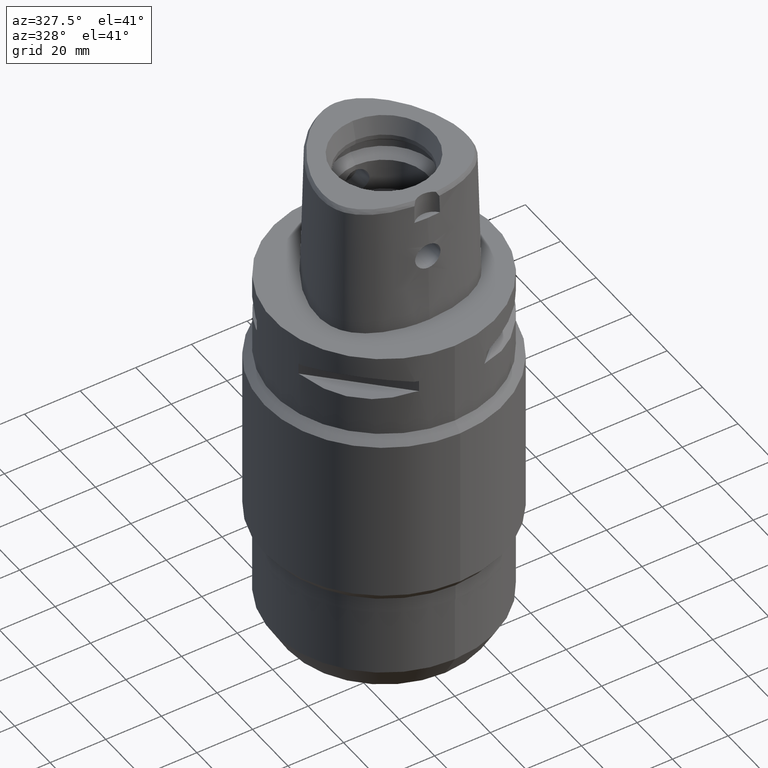
[diagram: clean part render]
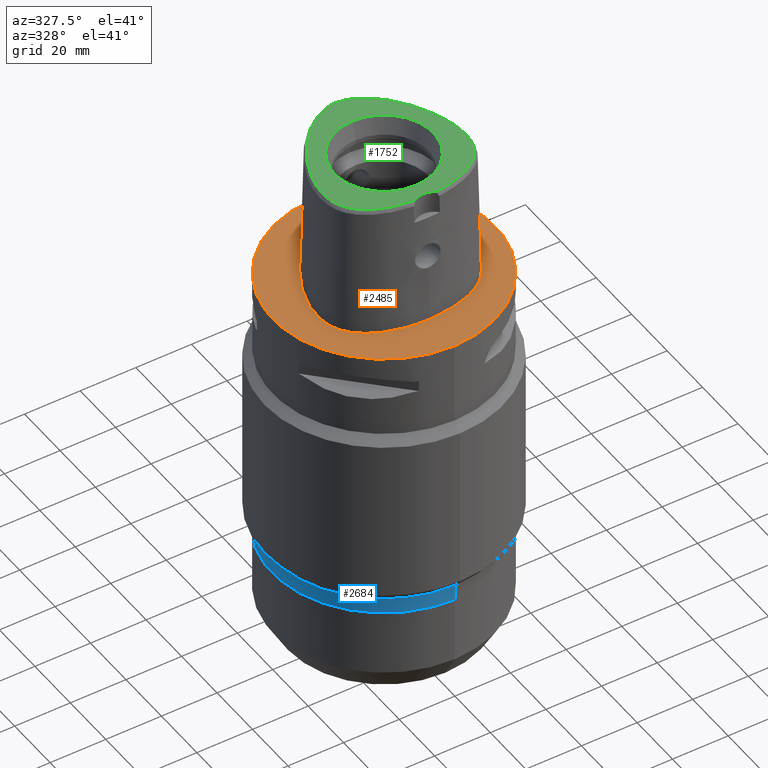
[diagram: same view with three faces highlighted in distinct colors, each labeled with its STEP entity id]
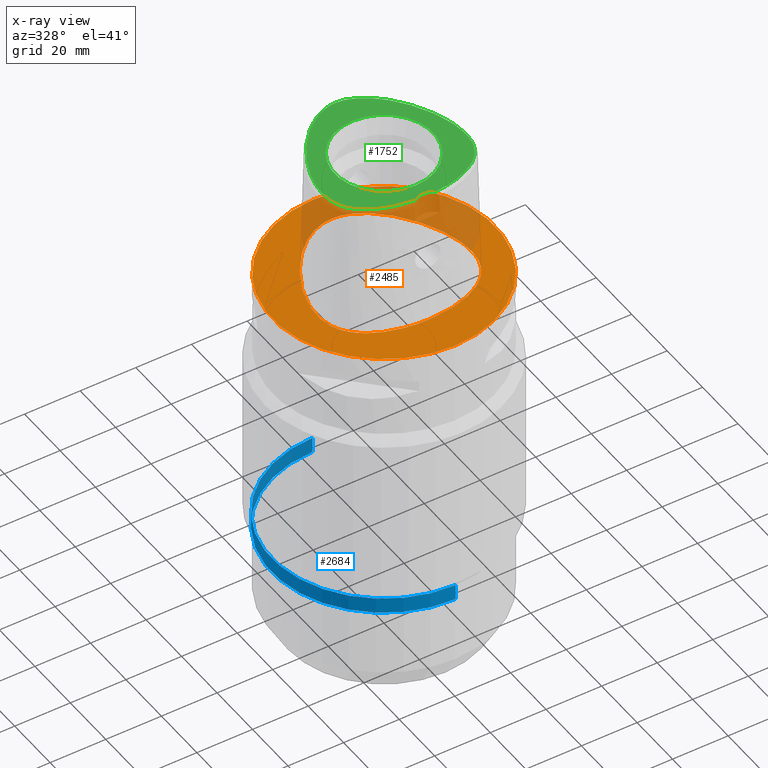
[diagram: x-ray of the same camera — body ghosted, the three highlighted faces saturated]
A machine part, auxiliary view with three faces highlighted in distinct colors.
The next image is the same camera in x-ray (body ghosted, the three faces saturated) — at least one of them is partly hidden behind the body in this view.
Their STEP definitions:

[orange] entity #2485 — the highlighted planar face has unit normal (0, 0, -1).
#284=CARTESIAN_POINT('',(0.E0,1.308780034249E-14,0.E0));
#285=DIRECTION('',(0.E0,0.E0,-1.E0));
#286=DIRECTION('',(0.E0,-1.E0,0.E0));
#287=AXIS2_PLACEMENT_3D('',#284,#285,#286);
#292=CARTESIAN_POINT('',(0.E0,1.308780034249E-14,0.E0));
#293=DIRECTION('',(0.E0,0.E0,-1.E0));
#294=DIRECTION('',(0.E0,1.E0,0.E0));
#295=AXIS2_PLACEMENT_3D('',#292,#293,#294);
#300=CARTESIAN_POINT('',(-1.259880274379E-11,-2.5575E1,9.040916163864E-14));
#301=CARTESIAN_POINT('',(1.261207447350E0,-2.5575E1,9.040916163864E-14));
#302=CARTESIAN_POINT('',(3.718179933075E0,-2.547857452489E1,
-4.195903793974E-14));
#303=CARTESIAN_POINT('',(7.240705837510E0,-2.507030802752E1,
1.124289033114E-14));
#304=CARTESIAN_POINT('',(1.050024558177E1,-2.443006583016E1,0.E0));
#305=CARTESIAN_POINT('',(1.341835861359E1,-2.360765640070E1,0.E0));
#306=CARTESIAN_POINT('',(1.597034105915E1,-2.265297043850E1,0.E0));
#307=CARTESIAN_POINT('',(1.817184763725E1,-2.160585265022E1,0.E0));
#308=CARTESIAN_POINT('',(2.005906641113E1,-2.049120242452E1,0.E0));
#309=CARTESIAN_POINT('',(2.165550347096E1,-1.933646032974E1,0.E0));
#310=CARTESIAN_POINT('',(2.301006974151E1,-1.814303779308E1,0.E0));
#311=CARTESIAN_POINT('',(2.414386041108E1,-1.692409573042E1,0.E0));
#312=CARTESIAN_POINT('',(2.509815608432E1,-1.566218093477E1,0.E0));
#313=CARTESIAN_POINT('',(2.589373479761E1,-1.433637151526E1,0.E0));
#314=CARTESIAN_POINT('',(2.654439279898E1,-1.292819265653E1,0.E0));
#315=CARTESIAN_POINT('',(2.707227082252E1,-1.138988530395E1,0.E0));
#316=CARTESIAN_POINT('',(2.747136657536E1,-9.693473818852E0,0.E0));
#317=CARTESIAN_POINT('',(2.772786675753E1,-7.791573008351E0,0.E0));
#318=CARTESIAN_POINT('',(2.781205187001E1,-5.676398996866E0,0.E0));
#319=CARTESIAN_POINT('',(2.769229699443E1,-3.320307071040E0,0.E0));
#320=CARTESIAN_POINT('',(2.732912117602E1,-7.093632411035E-1,0.E0));
#321=CARTESIAN_POINT('',(2.668151856095E1,2.153217594110E0,0.E0));
#322=CARTESIAN_POINT('',(2.571344251087E1,5.239638069469E0,0.E0));
#323=CARTESIAN_POINT('',(2.440280266561E1,8.489998082643E0,0.E0));
#324=CARTESIAN_POINT('',(2.276338936013E1,1.178954261108E1,0.E0));
#325=CARTESIAN_POINT('',(2.084918218612E1,1.499790412370E1,0.E0));
#326=CARTESIAN_POINT('',(1.875653894445E1,1.796004655102E1,0.E0));
#327=CARTESIAN_POINT('',(1.657816998336E1,2.058190727795E1,0.E0));
#328=CARTESIAN_POINT('',(1.439588030136E1,2.281748529486E1,0.E0));
#329=CARTESIAN_POINT('',(1.226799440244E1,2.466532793176E1,0.E0));
#330=CARTESIAN_POINT('',(1.022602620212E1,2.615357128313E1,0.E0));
#331=CARTESIAN_POINT('',(8.287455705675E0,2.731909373846E1,0.E0));
#332=CARTESIAN_POINT('',(6.454164190980E0,2.820374363513E1,0.E0));
#333=CARTESIAN_POINT('',(4.717863503287E0,2.884639976424E1,0.E0));
#334=CARTESIAN_POINT('',(3.069270244740E0,2.927787737342E1,1.043292361060E-14));
#335=CARTESIAN_POINT('',(1.501127257022E0,2.952296008063E1,
-3.893620098625E-14));
#336=CARTESIAN_POINT('',(4.932289073076E-1,2.957499999999E1,
8.389585322751E-14));
#337=CARTESIAN_POINT('',(3.246797305882E-11,2.957499999999E1,
8.389585322751E-14));
#342=CARTESIAN_POINT('',(3.246797305882E-11,2.957499999999E1,
8.389585322751E-14));
#343=CARTESIAN_POINT('',(-4.935218364234E-1,2.9575E1,8.389585322751E-14));
#344=CARTESIAN_POINT('',(-1.501770038441E0,2.952291270597E1,
-3.893620098625E-14));
#345=CARTESIAN_POINT('',(-3.070150224443E0,2.927766824744E1,
1.043292361060E-14));
#346=CARTESIAN_POINT('',(-4.717429658208E0,2.884649958026E1,0.E0));
#347=CARTESIAN_POINT('',(-6.453525135845E0,2.820402776714E1,0.E0));
#348=CARTESIAN_POINT('',(-8.287124270453E0,2.731927850090E1,0.E0));
#349=CARTESIAN_POINT('',(-1.022579449307E1,2.615374195714E1,0.E0));
#350=CARTESIAN_POINT('',(-1.226854351079E1,2.466493324310E1,0.E0));
#351=CARTESIAN_POINT('',(-1.439693973065E1,2.281647385840E1,0.E0));
#352=CARTESIAN_POINT('',(-1.657874315625E1,2.058126978314E1,0.E0));
#353=CARTESIAN_POINT('',(-1.875714551412E1,1.795919839573E1,0.E0));
#354=CARTESIAN_POINT('',(-2.084819142304E1,1.499930808962E1,0.E0));
#355=CARTESIAN_POINT('',(-2.276147181715E1,1.179289609205E1,0.E0));
#356=CARTESIAN_POINT('',(-2.439958324787E1,8.496935296554E0,0.E0));
#357=CARTESIAN_POINT('',(-2.570992862620E1,5.249179460505E0,0.E0));
#358=CARTESIAN_POINT('',(-2.667764481780E1,2.166911409041E0,0.E0));
#359=CARTESIAN_POINT('',(-2.732561094534E1,-6.908226314120E-1,0.E0));
#360=CARTESIAN_POINT('',(-2.769029224992E1,-3.300452857703E0,0.E0));
#361=CARTESIAN_POINT('',(-2.781191537807E1,-5.654802974526E0,0.E0));
#362=CARTESIAN_POINT('',(-2.772936440119E1,-7.771622083391E0,0.E0));
#363=CARTESIAN_POINT('',(-2.747625046266E1,-9.667377166128E0,0.E0));
#364=CARTESIAN_POINT('',(-2.707598857268E1,-1.137801247622E1,0.E0));
#365=CARTESIAN_POINT('',(-2.654784524431E1,-1.292062999253E1,0.E0));
#366=CARTESIAN_POINT('',(-2.588955697541E1,-1.434512067514E1,0.E0));
#367=CARTESIAN_POINT('',(-2.509445679839E1,-1.566681785519E1,0.E0));
#368=CARTESIAN_POINT('',(-2.414752725193E1,-1.691941911810E1,0.E0));
#369=CARTESIAN_POINT('',(-2.301748292128E1,-1.813526212870E1,0.E0));
#370=CARTESIAN_POINT('',(-2.167590100650E1,-1.932011302917E1,0.E0));
#371=CARTESIAN_POINT('',(-2.007354854073E1,-2.048194732013E1,0.E0));
#372=CARTESIAN_POINT('',(-1.819100690708E1,-2.159563948573E1,0.E0));
#373=CARTESIAN_POINT('',(-1.598629775416E1,-2.264642027838E1,0.E0));
#374=CARTESIAN_POINT('',(-1.343347509152E1,-2.360271900730E1,0.E0));
#375=CARTESIAN_POINT('',(-1.051573350269E1,-2.442648025835E1,0.E0));
#376=CARTESIAN_POINT('',(-7.249525221807E0,-2.506923339403E1,
1.124289033114E-14));
#377=CARTESIAN_POINT('',(-3.716585937515E0,-2.547885029765E1,
-4.195903793974E-14));
#378=CARTESIAN_POINT('',(-1.259999902723E0,-2.5575E1,9.040916163864E-14));
#379=CARTESIAN_POINT('',(-1.259880274379E-11,-2.5575E1,9.040916163864E-14));
#1574=VERTEX_POINT('',#342);
#1575=VERTEX_POINT('',#379);
#1580=CARTESIAN_POINT('',(0.E0,-4.E1,0.E0));
#1581=CARTESIAN_POINT('',(0.E0,4.E1,0.E0));
#1582=VERTEX_POINT('',#1580);
#1583=VERTEX_POINT('',#1581);
#2469=CARTESIAN_POINT('',(0.E0,1.224646799147E-14,0.E0));
#2470=DIRECTION('',(0.E0,0.E0,-1.E0));
#2471=DIRECTION('',(0.E0,-1.E0,0.E0));
#2472=AXIS2_PLACEMENT_3D('',#2469,#2470,#2471);
#2473=PLANE('',#2472);
#2475=ORIENTED_EDGE('',*,*,#2474,.T.);
#2477=ORIENTED_EDGE('',*,*,#2476,.T.);
#2478=EDGE_LOOP('',(#2475,#2477));
#2479=FACE_OUTER_BOUND('',#2478,.F.);
#2481=ORIENTED_EDGE('',*,*,#2480,.T.);
#2482=ORIENTED_EDGE('',*,*,#2452,.T.);
#2483=EDGE_LOOP('',(#2481,#2482));
#2484=FACE_BOUND('',#2483,.F.);
#288=CIRCLE('',#287,4.E1);
#296=CIRCLE('',#295,4.E1);
#338=B_SPLINE_CURVE_WITH_KNOTS('',3,(#300,#301,#302,#303,#304,#305,#306,#307,
#308,#309,#310,#311,#312,#313,#314,#315,#316,#317,#318,#319,#320,#321,#322,#323,
#324,#325,#326,#327,#328,#329,#330,#331,#332,#333,#334,#335,#336,#337),
.UNSPECIFIED.,.F.,.F.,(4,1,1,1,1,1,1,1,1,1,1,1,1,1,1,1,1,1,1,1,1,1,1,1,1,1,1,1,
1,1,1,1,1,1,1,4),(0.E0,2.857142857143E-2,5.714285714286E-2,8.571428571429E-2,
1.142857142857E-1,1.428571428571E-1,1.714285714286E-1,2.E-1,2.285714285714E-1,
2.571428571429E-1,2.857142857143E-1,3.142857142857E-1,3.428571428571E-1,
3.714285714286E-1,4.E-1,4.285714285714E-1,4.571428571429E-1,4.857142857143E-1,
5.142857142857E-1,5.428571428571E-1,5.714285714286E-1,6.E-1,6.285714285714E-1,
6.571428571429E-1,6.857142857143E-1,7.142857142857E-1,7.428571428571E-1,
7.714285714286E-1,8.E-1,8.285714285714E-1,8.571428571429E-1,8.857142857143E-1,
9.142857142857E-1,9.428571428571E-1,9.714285714286E-1,1.E0),.UNSPECIFIED.);
#380=B_SPLINE_CURVE_WITH_KNOTS('',3,(#342,#343,#344,#345,#346,#347,#348,#349,
#350,#351,#352,#353,#354,#355,#356,#357,#358,#359,#360,#361,#362,#363,#364,#365,
#366,#367,#368,#369,#370,#371,#372,#373,#374,#375,#376,#377,#378,#379),
.UNSPECIFIED.,.F.,.F.,(4,1,1,1,1,1,1,1,1,1,1,1,1,1,1,1,1,1,1,1,1,1,1,1,1,1,1,1,
1,1,1,1,1,1,1,4),(0.E0,2.857142857143E-2,5.714285714286E-2,8.571428571429E-2,
1.142857142857E-1,1.428571428571E-1,1.714285714286E-1,2.E-1,2.285714285714E-1,
2.571428571429E-1,2.857142857143E-1,3.142857142857E-1,3.428571428571E-1,
3.714285714286E-1,4.E-1,4.285714285714E-1,4.571428571429E-1,4.857142857143E-1,
5.142857142857E-1,5.428571428571E-1,5.714285714286E-1,6.E-1,6.285714285714E-1,
6.571428571429E-1,6.857142857143E-1,7.142857142857E-1,7.428571428571E-1,
7.714285714286E-1,8.E-1,8.285714285714E-1,8.571428571429E-1,8.857142857143E-1,
9.142857142857E-1,9.428571428571E-1,9.714285714286E-1,1.E0),.UNSPECIFIED.);
#2452=EDGE_CURVE('',#1574,#1575,#380,.T.);
#2474=EDGE_CURVE('',#1582,#1583,#288,.T.);
#2476=EDGE_CURVE('',#1583,#1582,#296,.T.);
#2480=EDGE_CURVE('',#1575,#1574,#338,.T.);
#2485=ADVANCED_FACE('',(#2479,#2484),#2473,.F.);

[blue] entity #2684 — the highlighted cylindrical surface (partial cylindrical patch) has radius 40.35 mm, axis along (0, 0, -1).
#640=CARTESIAN_POINT('',(0.E0,0.E0,-9.591666877729E1));
#641=DIRECTION('',(0.E0,0.E0,-1.E0));
#642=DIRECTION('',(0.E0,-1.E0,0.E0));
#643=AXIS2_PLACEMENT_3D('',#640,#641,#642);
#648=DIRECTION('',(0.E0,2.975529042460E-13,-1.E0));
#649=VECTOR('',#648,5.683331222709E0);
#650=CARTESIAN_POINT('',(0.E0,-4.035E1,-9.591666877729E1));
#651=LINE('',#650,#649);
#655=DIRECTION('',(0.E0,-2.975529042460E-13,-1.E0));
#656=VECTOR('',#655,5.683331222709E0);
#657=CARTESIAN_POINT('',(0.E0,4.035E1,-9.591666877729E1));
#658=LINE('',#657,#656);
#670=CARTESIAN_POINT('',(0.E0,1.308780034249E-14,-1.016E2));
#671=DIRECTION('',(0.E0,0.E0,1.E0));
#672=DIRECTION('',(0.E0,1.E0,0.E0));
#673=AXIS2_PLACEMENT_3D('',#670,#671,#672);
#1648=CARTESIAN_POINT('',(0.E0,4.035E1,-9.591666877729E1));
#1649=VERTEX_POINT('',#1648);
#1650=CARTESIAN_POINT('',(0.E0,-4.035E1,-9.591666877729E1));
#1651=VERTEX_POINT('',#1650);
#1652=CARTESIAN_POINT('',(0.E0,4.035E1,-1.016E2));
#1653=VERTEX_POINT('',#1652);
#1654=CARTESIAN_POINT('',(0.E0,-4.035E1,-1.016E2));
#1655=VERTEX_POINT('',#1654);
#2670=CARTESIAN_POINT('',(0.E0,1.308780034249E-14,6.87E0));
#2671=DIRECTION('',(0.E0,0.E0,-1.E0));
#2672=DIRECTION('',(0.E0,-1.E0,0.E0));
#2673=AXIS2_PLACEMENT_3D('',#2670,#2671,#2672);
#2674=CYLINDRICAL_SURFACE('',#2673,4.035E1);
#2676=ORIENTED_EDGE('',*,*,#2675,.F.);
#2677=ORIENTED_EDGE('',*,*,#2665,.F.);
#2679=ORIENTED_EDGE('',*,*,#2678,.T.);
#2681=ORIENTED_EDGE('',*,*,#2680,.F.);
#2682=EDGE_LOOP('',(#2676,#2677,#2679,#2681));
#2683=FACE_OUTER_BOUND('',#2682,.F.);
#644=CIRCLE('',#643,4.035E1);
#674=CIRCLE('',#673,4.035E1);
#2665=EDGE_CURVE('',#1651,#1649,#644,.T.);
#2675=EDGE_CURVE('',#1649,#1653,#658,.T.);
#2678=EDGE_CURVE('',#1651,#1655,#651,.T.);
#2680=EDGE_CURVE('',#1653,#1655,#674,.T.);
#2684=ADVANCED_FACE('',(#2683),#2674,.T.);

[green] entity #1752 — the highlighted planar face has unit normal (0, 0, 1).
#17=CARTESIAN_POINT('',(0.E0,-2.82E1,4.8E1));
#18=DIRECTION('',(0.E0,0.E0,1.E0));
#19=DIRECTION('',(6.087555377261E-1,7.933578607967E-1,0.E0));
#20=AXIS2_PLACEMENT_3D('',#17,#18,#19);
#26=CARTESIAN_POINT('',(-3.652522997767E0,-2.343985098347E1,4.8E1));
#27=CARTESIAN_POINT('',(-4.790738551227E0,-2.334983108673E1,4.8E1));
#28=CARTESIAN_POINT('',(-6.923036490752E0,-2.309458465777E1,4.8E1));
#29=CARTESIAN_POINT('',(-9.664129206474E0,-2.256649029775E1,4.8E1));
#30=CARTESIAN_POINT('',(-1.204649551352E1,-2.193673741028E1,4.8E1));
#31=CARTESIAN_POINT('',(-1.415844021858E1,-2.122106854864E1,4.8E1));
#32=CARTESIAN_POINT('',(-1.606413163527E1,-2.041995835463E1,4.8E1));
#33=CARTESIAN_POINT('',(-1.779710332804E1,-1.953165082833E1,4.8E1));
#34=CARTESIAN_POINT('',(-1.940203712478E1,-1.852928113467E1,4.8E1));
#35=CARTESIAN_POINT('',(-2.080389181587E1,-1.745550500891E1,4.8E1));
#36=CARTESIAN_POINT('',(-2.196107949612E1,-1.637022175497E1,4.8E1));
#37=CARTESIAN_POINT('',(-2.291473616042E1,-1.527329137963E1,4.8E1));
#38=CARTESIAN_POINT('',(-2.369323134776E1,-1.416230142199E1,4.8E1));
#39=CARTESIAN_POINT('',(-2.433082469049E1,-1.300573097428E1,4.8E1));
#40=CARTESIAN_POINT('',(-2.486788021900E1,-1.172841596637E1,4.8E1));
#41=CARTESIAN_POINT('',(-2.530245545293E1,-1.029396107028E1,4.8E1));
#42=CARTESIAN_POINT('',(-2.561928308626E1,-8.677621983350E0,4.8E1));
#43=CARTESIAN_POINT('',(-2.579183038944E1,-6.850338471059E0,4.8E1));
#44=CARTESIAN_POINT('',(-2.579602750248E1,-4.948756673782E0,4.8E1));
#45=CARTESIAN_POINT('',(-2.564228678539E1,-2.977739114789E0,4.8E1));
#46=CARTESIAN_POINT('',(-2.532145828898E1,-8.804411957880E-1,4.8E1));
#47=CARTESIAN_POINT('',(-2.481601241964E1,1.362913556681E0,4.8E1));
#48=CARTESIAN_POINT('',(-2.408156198802E1,3.829034566399E0,4.8E1));
#49=CARTESIAN_POINT('',(-2.304378900909E1,6.601135535334E0,4.8E1));
#50=CARTESIAN_POINT('',(-2.160159166665E1,9.722035972291E0,4.8E1));
#51=CARTESIAN_POINT('',(-1.982970702775E1,1.288242269149E1,4.8E1));
#52=CARTESIAN_POINT('',(-1.784864378717E1,1.584032414211E1,4.8E1));
#53=CARTESIAN_POINT('',(-1.593046706985E1,1.827889771014E1,4.8E1));
#54=CARTESIAN_POINT('',(-1.411734539689E1,2.027687603957E1,4.8E1));
#55=CARTESIAN_POINT('',(-1.242320207424E1,2.190654797268E1,4.8E1));
#56=CARTESIAN_POINT('',(-1.076959416440E1,2.329453861065E1,4.8E1));
#57=CARTESIAN_POINT('',(-9.124588964133E0,2.448314298113E1,4.8E1));
#58=CARTESIAN_POINT('',(-7.471186773146E0,2.548964620308E1,4.8E1));
#59=CARTESIAN_POINT('',(-5.820523125397E0,2.630552263920E1,4.8E1));
#60=CARTESIAN_POINT('',(-4.225242882338E0,2.691092107059E1,4.8E1));
#61=CARTESIAN_POINT('',(-2.734878544912E0,2.731027710728E1,4.8E1));
#62=CARTESIAN_POINT('',(-1.338635727386E0,2.753507296764E1,4.8E1));
#63=CARTESIAN_POINT('',(-4.392362056893E-1,2.758331912251E1,4.8E1));
#64=CARTESIAN_POINT('',(-2.553408000929E-11,2.758331912251E1,4.8E1));
#69=CARTESIAN_POINT('',(-2.553408000929E-11,2.758331912251E1,4.8E1));
#70=CARTESIAN_POINT('',(4.388737038972E-1,2.758331912251E1,4.8E1));
#71=CARTESIAN_POINT('',(1.337687270228E0,2.753519274987E1,4.8E1));
#72=CARTESIAN_POINT('',(2.734902252833E0,2.731027871055E1,4.8E1));
#73=CARTESIAN_POINT('',(4.223791476619E0,2.691129437763E1,4.8E1));
#74=CARTESIAN_POINT('',(5.821863565307E0,2.630547350392E1,4.8E1));
#75=CARTESIAN_POINT('',(7.487451323321E0,2.548063266538E1,4.8E1));
#76=CARTESIAN_POINT('',(9.128003311419E0,2.448070719712E1,4.8E1));
#77=CARTESIAN_POINT('',(1.078129815623E1,2.328557892686E1,4.8E1));
#78=CARTESIAN_POINT('',(1.243107863672E1,2.189941767634E1,4.8E1));
#79=CARTESIAN_POINT('',(1.413074402983E1,2.026329063008E1,4.8E1));
#80=CARTESIAN_POINT('',(1.594974334963E1,1.825684040487E1,4.8E1));
#81=CARTESIAN_POINT('',(1.787956458172E1,1.579759109897E1,4.8E1));
#82=CARTESIAN_POINT('',(1.984972480206E1,1.284985575425E1,4.8E1));
#83=CARTESIAN_POINT('',(2.162648791475E1,9.673108489024E0,4.8E1));
#84=CARTESIAN_POINT('',(2.305157487989E1,6.580289894537E0,4.8E1));
#85=CARTESIAN_POINT('',(2.408260648255E1,3.825428048241E0,4.8E1));
#86=CARTESIAN_POINT('',(2.481620839112E1,1.362247939262E0,4.8E1));
#87=CARTESIAN_POINT('',(2.532212614383E1,-8.836558999176E-1,4.8E1));
#88=CARTESIAN_POINT('',(2.564327150824E1,-2.984443340498E0,4.8E1));
#89=CARTESIAN_POINT('',(2.579703479583E1,-4.966961987101E0,4.8E1));
#90=CARTESIAN_POINT('',(2.579059329165E1,-6.869409640598E0,4.8E1));
#91=CARTESIAN_POINT('',(2.561866307730E1,-8.679385348279E0,4.8E1));
#92=CARTESIAN_POINT('',(2.530223104967E1,-1.029544584200E1,4.8E1));
#93=CARTESIAN_POINT('',(2.486672264031E1,-1.173158092457E1,4.8E1));
#94=CARTESIAN_POINT('',(2.432997152450E1,-1.300750695727E1,4.8E1));
#95=CARTESIAN_POINT('',(2.369131034803E1,-1.416548074895E1,4.8E1));
#96=CARTESIAN_POINT('',(2.291217073293E1,-1.527656726891E1,4.8E1));
#97=CARTESIAN_POINT('',(2.195722787065E1,-1.637437628209E1,4.8E1));
#98=CARTESIAN_POINT('',(2.079629471097E1,-1.746202584190E1,4.8E1));
#99=CARTESIAN_POINT('',(1.939497647096E1,-1.853388872426E1,4.8E1));
#100=CARTESIAN_POINT('',(1.779682423932E1,-1.953163010146E1,4.8E1));
#101=CARTESIAN_POINT('',(1.606380665611E1,-2.042024592610E1,4.8E1));
#102=CARTESIAN_POINT('',(1.415574938499E1,-2.122192207082E1,4.8E1));
#103=CARTESIAN_POINT('',(1.205510207622E1,-2.193397236401E1,4.8E1));
#104=CARTESIAN_POINT('',(9.672263278372E0,-2.256475652955E1,4.8E1));
#105=CARTESIAN_POINT('',(6.927129553955E0,-2.309406175195E1,4.8E1));
#106=CARTESIAN_POINT('',(4.792222627018E0,-2.334968854460E1,4.8E1));
#107=CARTESIAN_POINT('',(3.652533226355E0,-2.343985283522E1,4.8E1));
#112=CARTESIAN_POINT('',(0.E0,0.E0,4.8E1));
#113=DIRECTION('',(0.E0,0.E0,1.E0));
#114=DIRECTION('',(0.E0,1.E0,0.E0));
#115=AXIS2_PLACEMENT_3D('',#112,#113,#114);
#120=CARTESIAN_POINT('',(0.E0,0.E0,4.8E1));
#121=DIRECTION('',(0.E0,0.E0,1.E0));
#122=DIRECTION('',(0.E0,-1.E0,0.E0));
#123=AXIS2_PLACEMENT_3D('',#120,#121,#122);
#1558=CARTESIAN_POINT('',(3.652533226356E0,-2.343985283522E1,4.8E1));
#1559=CARTESIAN_POINT('',(-3.652518103297E0,-2.343984123110E1,4.8E1));
#1560=VERTEX_POINT('',#1558);
#1561=VERTEX_POINT('',#1559);
#1562=VERTEX_POINT('',#64);
#1563=CARTESIAN_POINT('',(0.E0,1.771487483156E1,4.8E1));
#1564=CARTESIAN_POINT('',(0.E0,-1.771487483156E1,4.8E1));
#1565=VERTEX_POINT('',#1563);
#1566=VERTEX_POINT('',#1564);
#1733=CARTESIAN_POINT('',(0.E0,0.E0,4.8E1));
#1734=DIRECTION('',(0.E0,0.E0,1.E0));
#1735=DIRECTION('',(0.E0,1.E0,0.E0));
#1736=AXIS2_PLACEMENT_3D('',#1733,#1734,#1735);
#1737=PLANE('',#1736);
#1739=ORIENTED_EDGE('',*,*,#1738,.T.);
#1741=ORIENTED_EDGE('',*,*,#1740,.T.);
#1743=ORIENTED_EDGE('',*,*,#1742,.T.);
#1744=EDGE_LOOP('',(#1739,#1741,#1743));
#1745=FACE_OUTER_BOUND('',#1744,.F.);
#1747=ORIENTED_EDGE('',*,*,#1746,.T.);
#1749=ORIENTED_EDGE('',*,*,#1748,.T.);
#1750=EDGE_LOOP('',(#1747,#1749));
#1751=FACE_BOUND('',#1750,.F.);
#21=CIRCLE('',#20,6.E0);
#65=B_SPLINE_CURVE_WITH_KNOTS('',3,(#26,#27,#28,#29,#30,#31,#32,#33,#34,#35,#36,
#37,#38,#39,#40,#41,#42,#43,#44,#45,#46,#47,#48,#49,#50,#51,#52,#53,#54,#55,#56,
#57,#58,#59,#60,#61,#62,#63,#64),.UNSPECIFIED.,.F.,.F.,(4,1,1,1,1,1,1,1,1,1,1,1,
1,1,1,1,1,1,1,1,1,1,1,1,1,1,1,1,1,1,1,1,1,1,1,1,4),(0.E0,2.777777777778E-2,
5.555555555556E-2,8.333333333333E-2,1.111111111111E-1,1.388888888889E-1,
1.666666666667E-1,1.944444444444E-1,2.222222222222E-1,2.5E-1,2.777777777778E-1,
3.055555555556E-1,3.333333333333E-1,3.611111111111E-1,3.888888888889E-1,
4.166666666667E-1,4.444444444444E-1,4.722222222222E-1,5.E-1,5.277777777778E-1,
5.555555555556E-1,5.833333333333E-1,6.111111111111E-1,6.388888888889E-1,
6.666666666667E-1,6.944444444444E-1,7.222222222222E-1,7.5E-1,7.777777777778E-1,
8.055555555556E-1,8.333333333333E-1,8.611111111111E-1,8.888888888889E-1,
9.166666666667E-1,9.444444444444E-1,9.722222222222E-1,1.E0),.UNSPECIFIED.);
#108=B_SPLINE_CURVE_WITH_KNOTS('',3,(#69,#70,#71,#72,#73,#74,#75,#76,#77,#78,
#79,#80,#81,#82,#83,#84,#85,#86,#87,#88,#89,#90,#91,#92,#93,#94,#95,#96,#97,#98,
#99,#100,#101,#102,#103,#104,#105,#106,#107),.UNSPECIFIED.,.F.,.F.,(4,1,1,1,1,1,
1,1,1,1,1,1,1,1,1,1,1,1,1,1,1,1,1,1,1,1,1,1,1,1,1,1,1,1,1,1,4),(0.E0,
2.777777777778E-2,5.555555555556E-2,8.333333333333E-2,1.111111111111E-1,
1.388888888889E-1,1.666666666667E-1,1.944444444444E-1,2.222222222222E-1,2.5E-1,
2.777777777778E-1,3.055555555556E-1,3.333333333333E-1,3.611111111111E-1,
3.888888888889E-1,4.166666666667E-1,4.444444444444E-1,4.722222222222E-1,5.E-1,
5.277777777778E-1,5.555555555556E-1,5.833333333333E-1,6.111111111111E-1,
6.388888888889E-1,6.666666666667E-1,6.944444444444E-1,7.222222222222E-1,7.5E-1,
7.777777777778E-1,8.055555555556E-1,8.333333333333E-1,8.611111111111E-1,
8.888888888889E-1,9.166666666667E-1,9.444444444444E-1,9.722222222222E-1,1.E0),
.UNSPECIFIED.);
#116=CIRCLE('',#115,1.771487483156E1);
#124=CIRCLE('',#123,1.771487483156E1);
#1738=EDGE_CURVE('',#1560,#1561,#21,.T.);
#1740=EDGE_CURVE('',#1561,#1562,#65,.T.);
#1742=EDGE_CURVE('',#1562,#1560,#108,.T.);
#1746=EDGE_CURVE('',#1565,#1566,#116,.T.);
#1748=EDGE_CURVE('',#1566,#1565,#124,.T.);
#1752=ADVANCED_FACE('',(#1745,#1751),#1737,.T.);